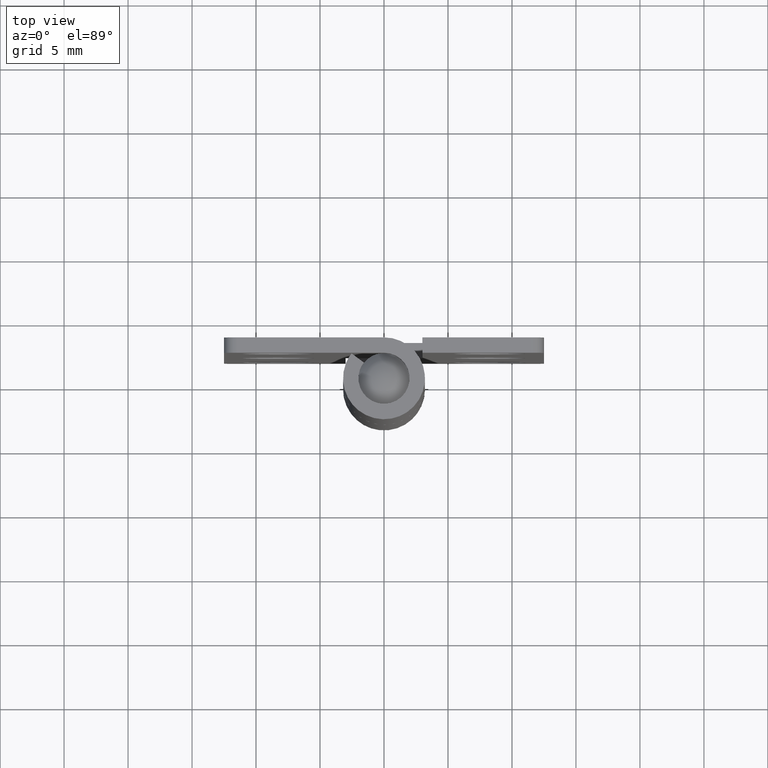
[diagram: clean part render]
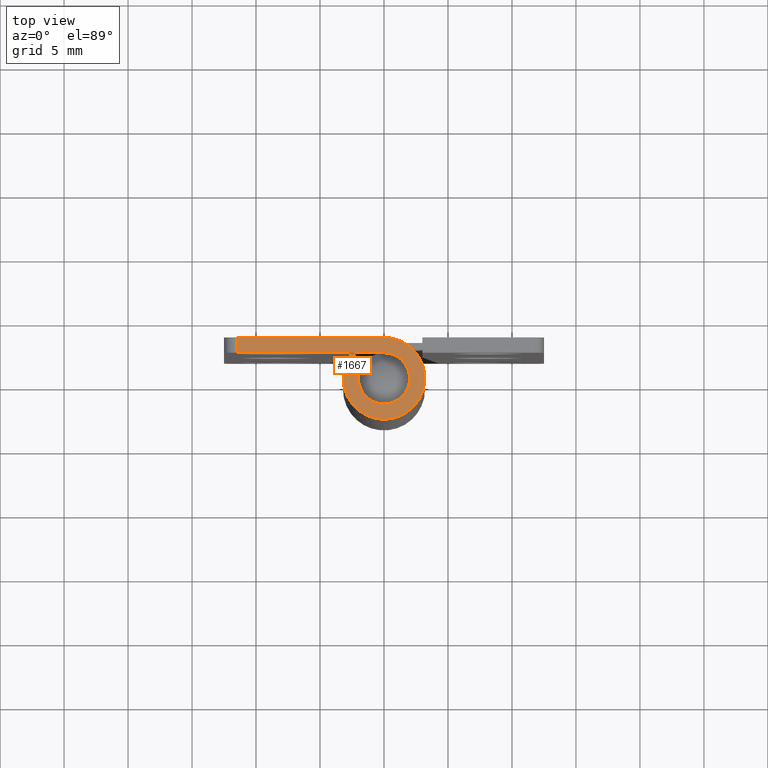
[diagram: same view with one face highlighted and labeled with its STEP entity id]
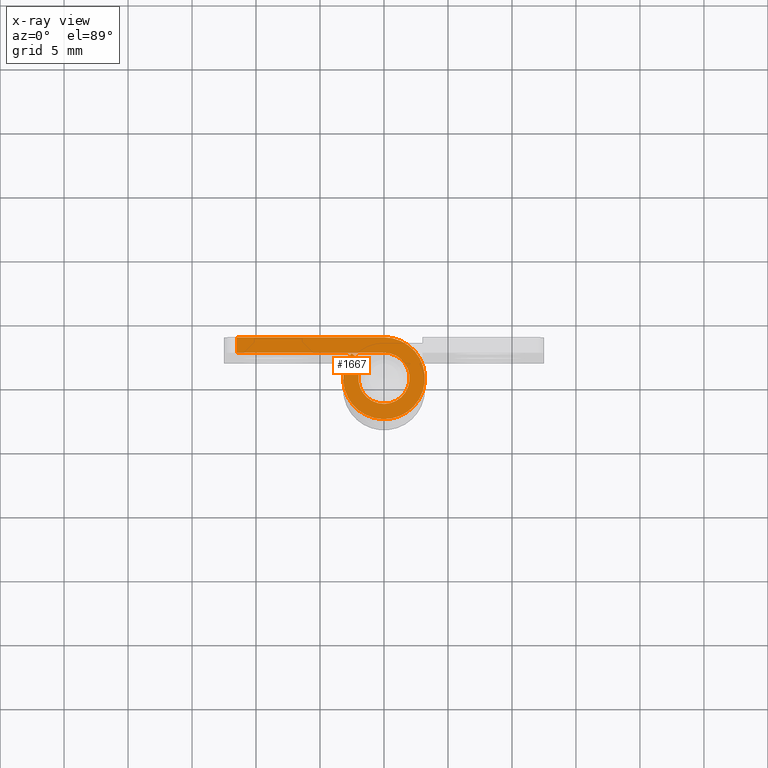
[diagram: x-ray of the same camera — body ghosted, the highlighted face saturated]
A machine part, top view. The second image highlights one B-rep face of the part: STEP entity #1667.
The next image is the same camera in x-ray: the body ghosted, the highlighted face saturated — about 0% of this face is hidden behind the body in this view.
In plain terms, the highlighted face is a freeform B-spline surface patch.
Its self-contained STEP definition (entity closure, byte-faithful):
#1437=CARTESIAN_POINT('',(-11.500000000000000,2.0,50.0));
#1438=VERTEX_POINT('',#1437);
#1454=CARTESIAN_POINT('',(-11.500000000000000,3.200000999999955,50.0));
#1455=VERTEX_POINT('',#1454);
#1456=CARTESIAN_POINT('',(-11.500000000000000,3.200000999999955,50.0));
#1457=CARTESIAN_POINT('',(-11.500000000000000,2.0,50.0));
#1458=QUASI_UNIFORM_CURVE('',1,(#1456,#1457),.UNSPECIFIED.,.F.,.U.);
#1459=EDGE_CURVE('',#1455,#1438,#1458,.T.);
#1568=CARTESIAN_POINT('',(-1.585764599757570,1.218749619140742,50.0));
#1569=VERTEX_POINT('',#1568);
#1575=CARTESIAN_POINT('',(1.224606E-016,2.0,50.0));
#1576=VERTEX_POINT('',#1575);
#1577=CARTESIAN_POINT('',(0.0,2.0,50.0));
#1578=CARTESIAN_POINT('',(1.587628036112339,2.000000000000000,50.000000000000007));
#1579=CARTESIAN_POINT('',(1.947841730135697,0.453775929663502,50.0));
#1580=CARTESIAN_POINT('',(2.308055424159055,-1.092448140672997,50.000000000000007));
#1581=CARTESIAN_POINT('',(0.883883691929689,-1.794087405658025,50.0));
#1582=CARTESIAN_POINT('',(-0.540288040299678,-2.495726670643054,50.000000000000007));
#1583=CARTESIAN_POINT('',(-1.546756586115895,-1.267889610063550,50.0));
#1584=CARTESIAN_POINT('',(-2.553225131932112,-0.040052549484049,50.000000000000007));
#1585=CARTESIAN_POINT('',(-1.585764599757573,1.218749619140743,50.0));
#1593=(BOUNDED_CURVE()B_SPLINE_CURVE(2,(#1577,#1578,#1579,#1580,#1581,#1582,#1583,#1584,#1585),.UNSPECIFIED.,.F.,.U.)B_SPLINE_CURVE_WITH_KNOTS((3,2,2,2,3),(0.0,0.250000000000000,0.500000000000000,0.750000000000000,1.0),.UNSPECIFIED.)CURVE()GEOMETRIC_REPRESENTATION_ITEM()RATIONAL_B_SPLINE_CURVE((1.0,0.783226648177828,1.0,0.783226648177828,1.0,0.783226648177828,1.0,0.783226648177828,1.0))REPRESENTATION_ITEM(''));
#1594=EDGE_CURVE('',#1576,#1569,#1593,.T.);
#1611=CARTESIAN_POINT('',(-2.537224152494420,1.950000000000000,50.0));
#1612=VERTEX_POINT('',#1611);
#1618=CARTESIAN_POINT('',(-2.537224152494420,1.950000000000000,50.0));
#1619=CARTESIAN_POINT('',(-1.585764599757570,1.218749619140742,50.0));
#1620=QUASI_UNIFORM_CURVE('',1,(#1618,#1619),.UNSPECIFIED.,.F.,.U.);
#1621=EDGE_CURVE('',#1612,#1569,#1620,.T.);
#1626=CARTESIAN_POINT('',(-12.234140314781540,-3.509201373319735,50.0));
#1627=CARTESIAN_POINT('',(3.931645078732225,-3.509201373319735,50.0));
#1628=CARTESIAN_POINT('',(-12.234140314781540,3.519182700192444,50.0));
#1629=CARTESIAN_POINT('',(3.931645078732225,3.519182700192444,50.0));
#1630=B_SPLINE_SURFACE_WITH_KNOTS('',1,1,((#1626,#1628),(#1627,#1629)),.UNSPECIFIED.,.F.,.F.,.U.,(2,2),(2,2),(0.0,16.165785393513769),(0.0,7.028384073512179),.UNSPECIFIED.);
#1631=ORIENTED_EDGE('',*,*,#1459,.T.);
#1632=CARTESIAN_POINT('',(1.224606E-016,2.0,50.0));
#1633=CARTESIAN_POINT('',(-11.500000000000000,2.0,50.0));
#1634=QUASI_UNIFORM_CURVE('',1,(#1632,#1633),.UNSPECIFIED.,.F.,.U.);
#1635=EDGE_CURVE('',#1576,#1438,#1634,.T.);
#1636=ORIENTED_EDGE('',*,*,#1635,.F.);
#1637=ORIENTED_EDGE('',*,*,#1594,.T.);
#1638=ORIENTED_EDGE('',*,*,#1621,.F.);
#1639=CARTESIAN_POINT('',(-5.878112E-016,3.200001000000000,50.0));
#1640=VERTEX_POINT('',#1639);
#1641=CARTESIAN_POINT('',(0.0,3.200001000000000,50.0));
#1642=CARTESIAN_POINT('',(2.540205651593761,3.200001000000001,50.000000000000007));
#1643=CARTESIAN_POINT('',(3.116547742137980,0.726041714349568,50.0));
#1644=CARTESIAN_POINT('',(3.692889832682200,-1.747917571300866,50.000000000000007));
#1645=CARTESIAN_POINT('',(1.414214349029349,-2.870540746096542,50.0));
#1646=CARTESIAN_POINT('',(-0.864461134623505,-3.993163920892222,50.000000000000007));
#1647=CARTESIAN_POINT('',(-2.474811311163726,-2.028624010046485,50.0));
#1648=CARTESIAN_POINT('',(-4.085161487703944,-0.064084099200752,50.000000000000007));
#1649=CARTESIAN_POINT('',(-2.537224152494417,1.949999999999998,50.0));
#1657=(BOUNDED_CURVE()B_SPLINE_CURVE(2,(#1641,#1642,#1643,#1644,#1645,#1646,#1647,#1648,#1649),.UNSPECIFIED.,.F.,.U.)B_SPLINE_CURVE_WITH_KNOTS((3,2,2,2,3),(0.0,0.250000000000000,0.500000000000000,0.750000000000000,1.0),.UNSPECIFIED.)CURVE()GEOMETRIC_REPRESENTATION_ITEM()RATIONAL_B_SPLINE_CURVE((1.0,0.783226648177828,1.0,0.783226648177828,1.0,0.783226648177828,1.0,0.783226648177828,1.0))REPRESENTATION_ITEM(''));
#1658=EDGE_CURVE('',#1640,#1612,#1657,.T.);
#1659=ORIENTED_EDGE('',*,*,#1658,.F.);
#1660=CARTESIAN_POINT('',(-11.500000000000000,3.200000999999955,50.0));
#1661=CARTESIAN_POINT('',(-5.878112E-016,3.200001000000000,50.0));
#1662=QUASI_UNIFORM_CURVE('',1,(#1660,#1661),.UNSPECIFIED.,.F.,.U.);
#1663=EDGE_CURVE('',#1455,#1640,#1662,.T.);
#1664=ORIENTED_EDGE('',*,*,#1663,.F.);
#1665=EDGE_LOOP('',(#1631,#1636,#1637,#1638,#1659,#1664));
#1666=FACE_OUTER_BOUND('',#1665,.T.);
#1667=ADVANCED_FACE('',(#1666),#1630,.T.);